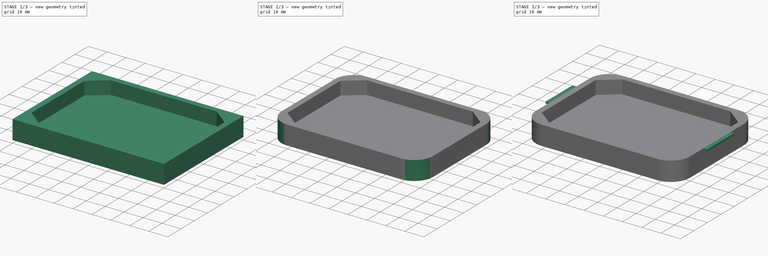
[diagram: build sequence overview — one tinted view per stage of 3, left to right]
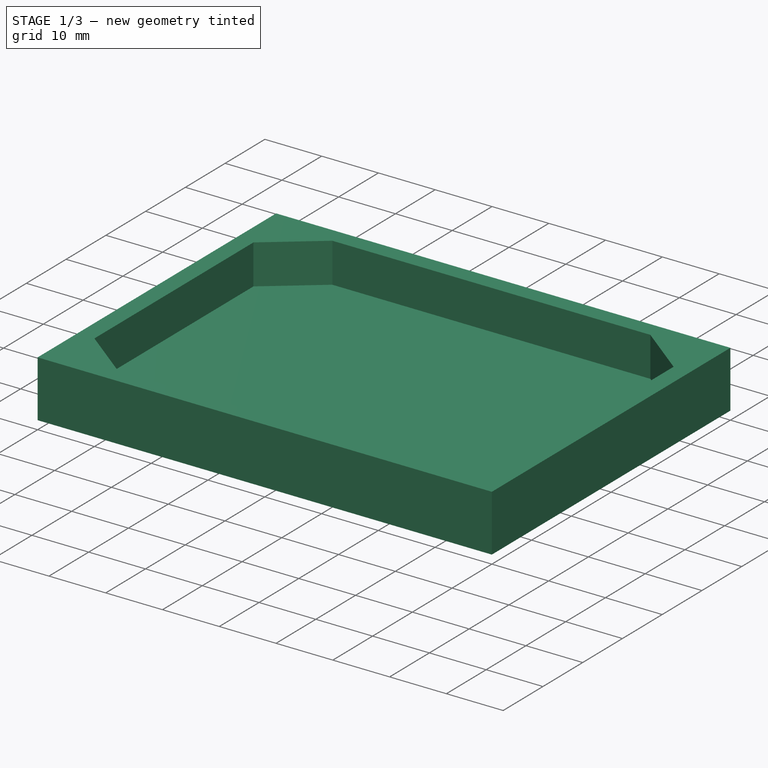
[diagram: stage 1 of 3 — iso view after this stage's code; geometry added in this stage tinted green]
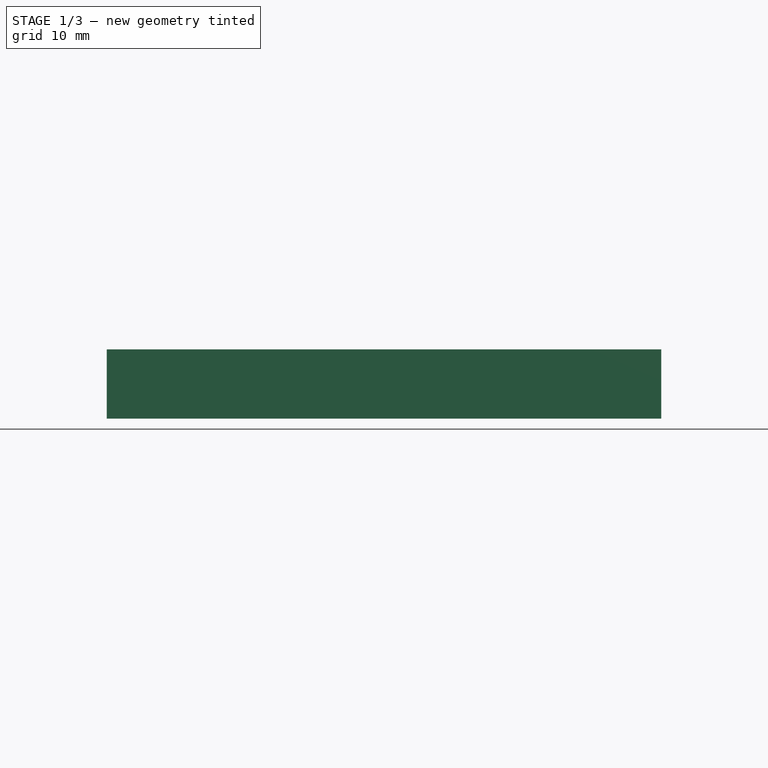
[diagram: stage 1 of 3 — front view after this stage's code; geometry added in this stage tinted green]
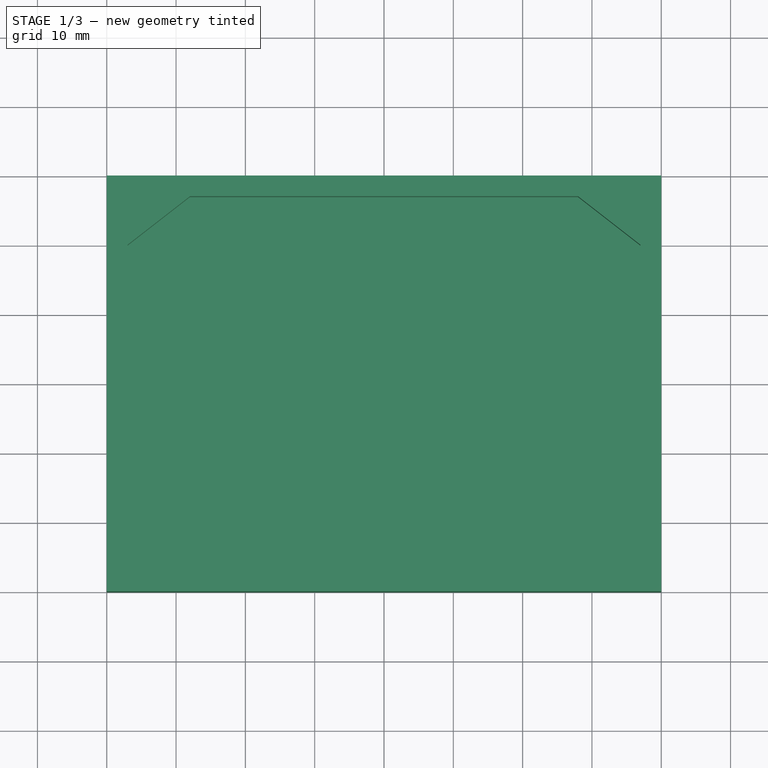
[diagram: stage 1 of 3 — top view after this stage's code; geometry added in this stage tinted green]
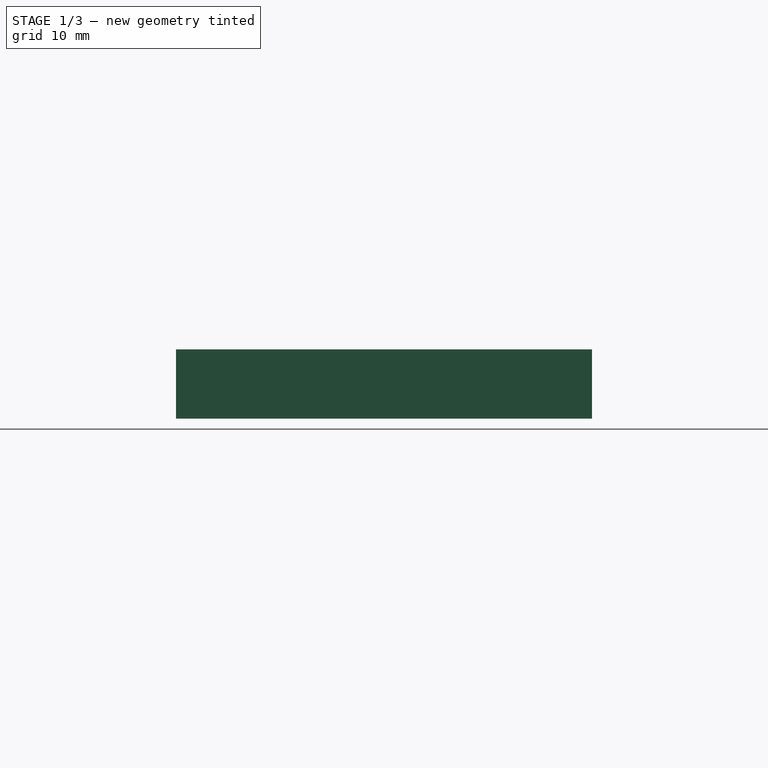
[diagram: stage 1 of 3 — right view after this stage's code; geometry added in this stage tinted green]
FCSTD DOCUMENT  (FreeCAD 0.19R)
Label: CercaCane
License: All rights reserved
LicenseURL: http://en.wikipedia.org/wiki/All_rights_reserved
objects: Sketcher::SketchObject×3, PartDesign::Pad×2, Spreadsheet::Sheet×1, PartDesign::Pocket×1, PartDesign::Fillet×1, PartDesign::Mirrored×1, PartDesign::Body×1
note: 13 computed .brp shape members not serialized (recipe doc carries the construction recipe); baked Part::Feature solids carry a one-line shape summary decoded from their .brp

FEATURE [Spreadsheet::Sheet] Spreadsheet  label="SB"
  cells = A1=Height; B1(height)=10; A2=Width; B2(width)=60; A3=Length; B3(length)=80; A4=Border; B4(border)=3
FEATURE [Sketcher::SketchObject] Sketch
  FullyConstrained = true
  MapMode = 5
  Support = -> [XY_Plane001]
  expr: Constraints[11] = <<SB>>.width / 2
  expr: Constraints[10] = <<SB>>.length / -2
  expr: Constraints[9] = <<SB>>.width
  expr: Constraints[8] = Spreadsheet.length
  sketch-geometry (4):
    g0: LineSegment StartX=-40 StartY=30 StartZ=0 EndX=40 EndY=30 EndZ=0
    g1: LineSegment StartX=40 StartY=30 StartZ=0 EndX=40 EndY=-30 EndZ=0
    g2: LineSegment StartX=40 StartY=-30 StartZ=0 EndX=-40 EndY=-30 EndZ=0
    g3: LineSegment StartX=-40 StartY=-30 StartZ=0 EndX=-40 EndY=30 EndZ=0
  constraints (12):
    c: Coincident(g0,g1)
    c: Coincident(g1,g2)
    c: Coincident(g2,g3)
    c: Coincident(g3,g0)
    c: Horizontal(g0)
    c: Horizontal(g2)
    c: Vertical(g1)
    c: Vertical(g3)
    c: DistanceX(g0,g0) = 80
    c: DistanceY(g3,g3) = 60
    c: DistanceX(g0) = -40
    c: DistanceY(g0) = 30
FEATURE [PartDesign::Pad] Pad  label="Shell"
  AllowMultiFace = false
  Direction = (1,1,1)
  Length = 10
  Length2 = 100
  Profile = -> Sketch
  Type = 0
  expr: Length = <<SB>>.height
FEATURE [Sketcher::SketchObject] Sketch002  label="Indent"
  FullyConstrained = false
  MapMode = 5
  Placement = pos=(0,0,10) rot=(0,0,1;0rad)
  Support = -> [Pad]
  expr: Constraints[11] = <<SB>>.width / 2 - <<SB>>.border
  expr: Constraints[12] = <<SB>>.length / -2 + <<SB>>.border
  expr: Constraints[10] = <<SB>>.length / -2 + <<SB>>.border * 4
  sketch-geometry (8):
    g0: LineSegment StartX=-28 StartY=27 StartZ=0 EndX=28 EndY=27 EndZ=0
    g1: LineSegment StartX=-28 StartY=27 StartZ=0 EndX=-37 EndY=20 EndZ=0
    g2: LineSegment StartX=-37 StartY=20 StartZ=0 EndX=-37 EndY=-20 EndZ=0
    g3: LineSegment StartX=-37 StartY=-20 StartZ=0 EndX=-28 EndY=-27 EndZ=0
    g4: LineSegment StartX=-28 StartY=-27 StartZ=0 EndX=28 EndY=-27 EndZ=0
    g5: LineSegment StartX=28 StartY=-27 StartZ=0 EndX=37 EndY=-20 EndZ=0
    g6: LineSegment StartX=37 StartY=-20 StartZ=0 EndX=37 EndY=20 EndZ=0
    g7: LineSegment StartX=37 StartY=20 StartZ=0 EndX=28 EndY=27 EndZ=0
  constraints (19):
    c: Horizontal(g0)
    c: Coincident(g1,g0)
    c: Coincident(g2,g1)
    c: Coincident(g3,g2)
    c: Coincident(g4,g3)
    c: Horizontal(g4)
    c: Coincident(g5,g4)
    c: Coincident(g6,g5)
    c: Coincident(g7,g6)
    c: Coincident(g7,g0)
    c: DistanceX(g0) = -28
    c: DistanceY(g0) = 27
    c: DistanceX(g1) = -37
    c: Symmetric(g2,g5,g-2)
    c: Symmetric(g3,g4,g-2)
    c: Symmetric(g0,g3,g-1)
    c: Symmetric(g1,g2,g-1)
    c: Symmetric(g0,g4,g-1)
    c: Symmetric(g6,g5,g-1)
FEATURE [PartDesign::Pocket] Pocket
  BaseFeature = -> Pad
  Length = 7
  Length2 = 100
  Profile = -> Sketch002
  Type = 0
  expr: Length = <<SB>>.height - <<SB>>.border
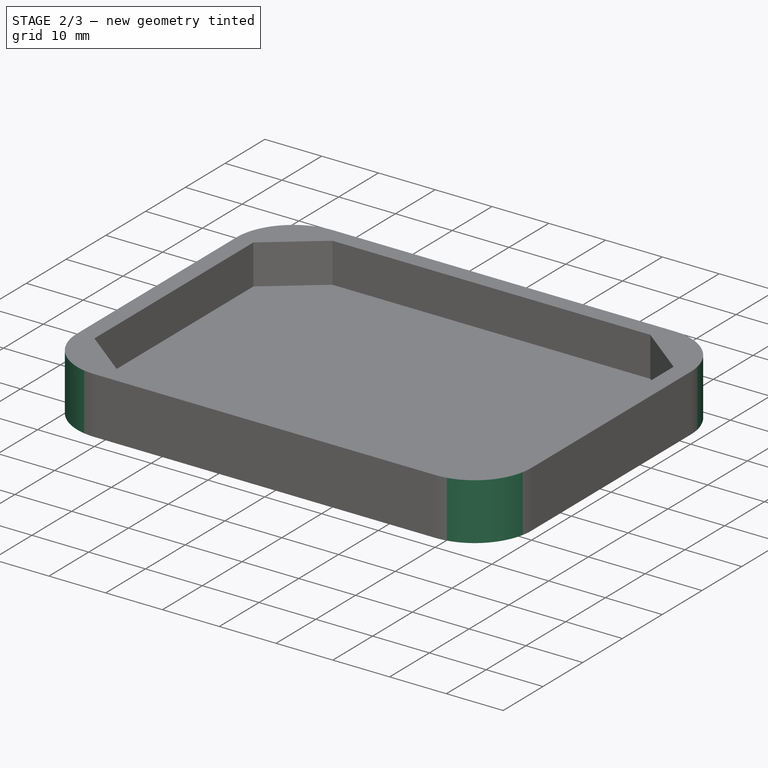
[diagram: stage 2 of 3 — iso view after this stage's code; geometry added in this stage tinted green]
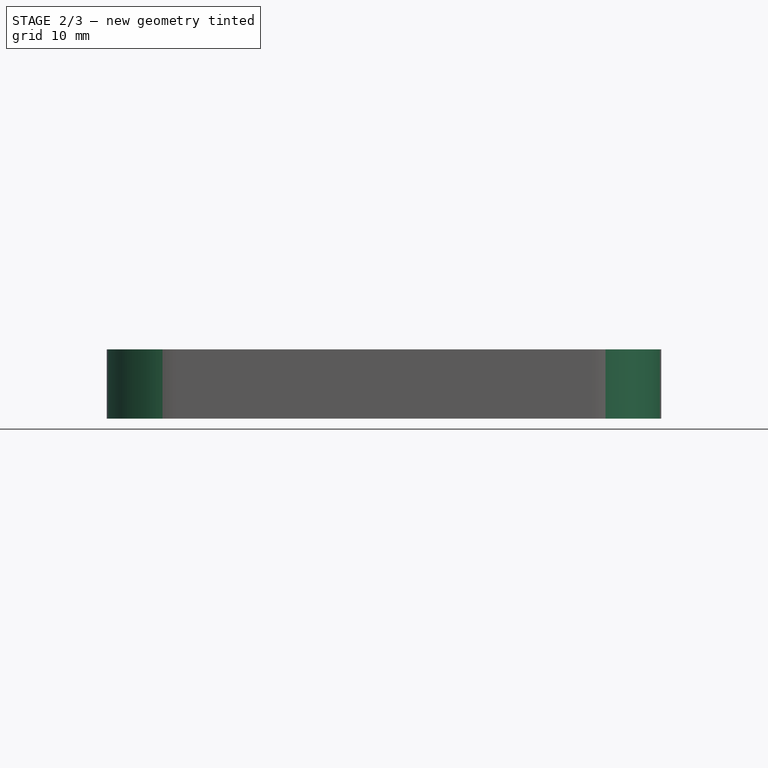
[diagram: stage 2 of 3 — front view after this stage's code; geometry added in this stage tinted green]
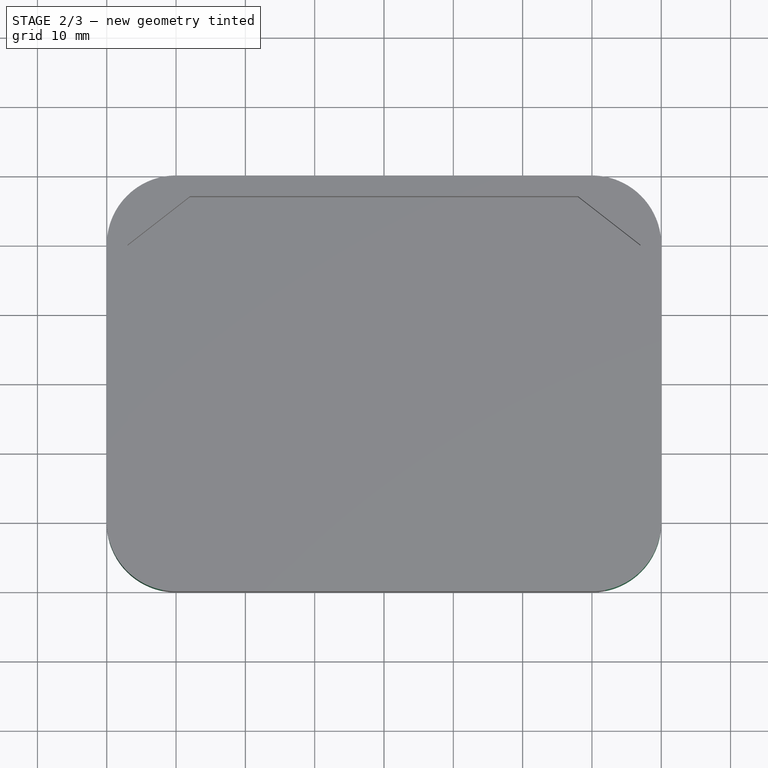
[diagram: stage 2 of 3 — top view after this stage's code; geometry added in this stage tinted green]
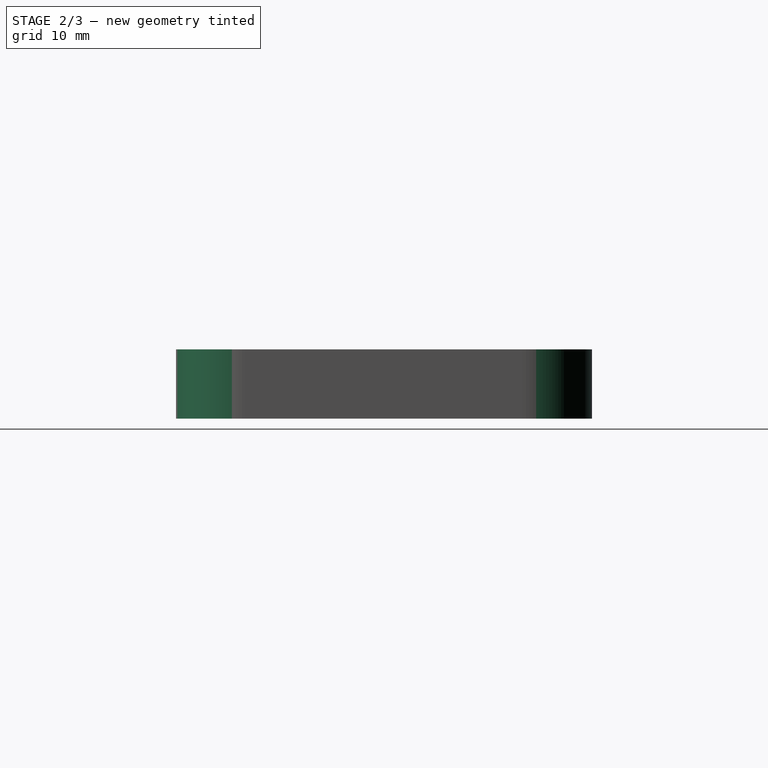
[diagram: stage 2 of 3 — right view after this stage's code; geometry added in this stage tinted green]
FEATURE [PartDesign::Fillet] Fillet001
  Base = -> Pocket [Edge1,Edge2,Edge8,Edge5]
  BaseFeature = -> Pocket
  Radius = 10
  SupportTransform = false
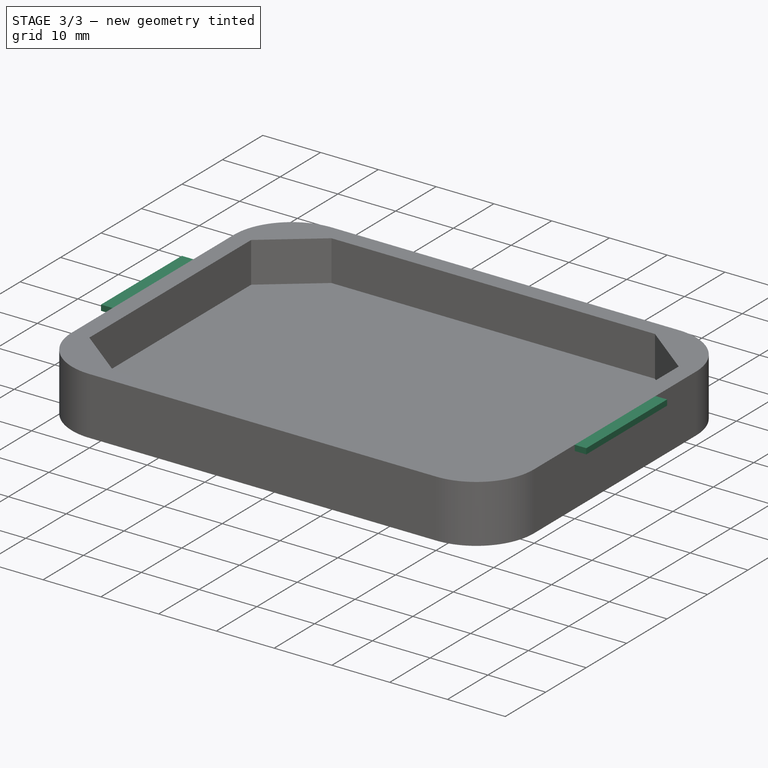
[diagram: stage 3 of 3 — iso view after this stage's code; geometry added in this stage tinted green]
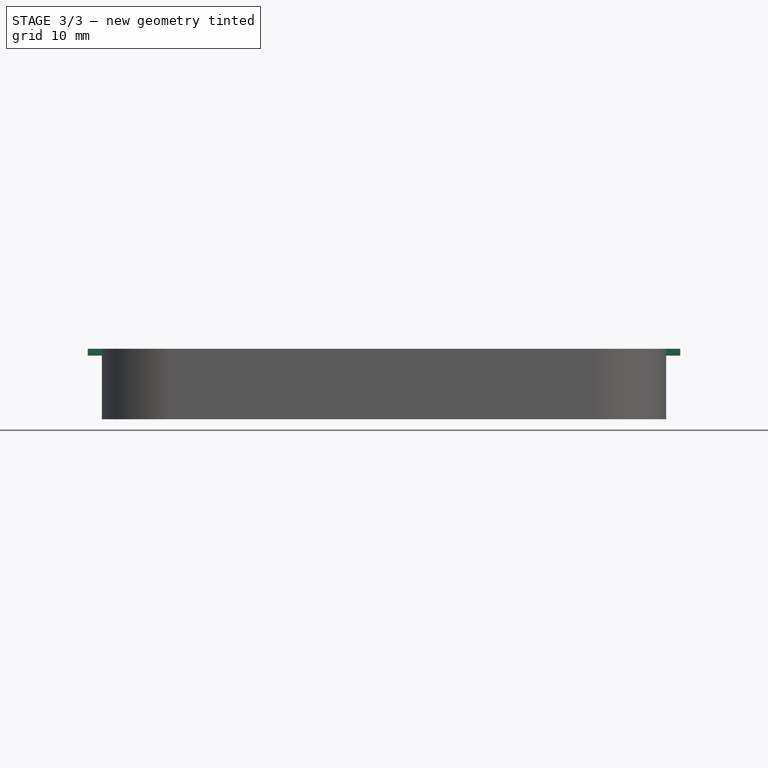
[diagram: stage 3 of 3 — front view after this stage's code; geometry added in this stage tinted green]
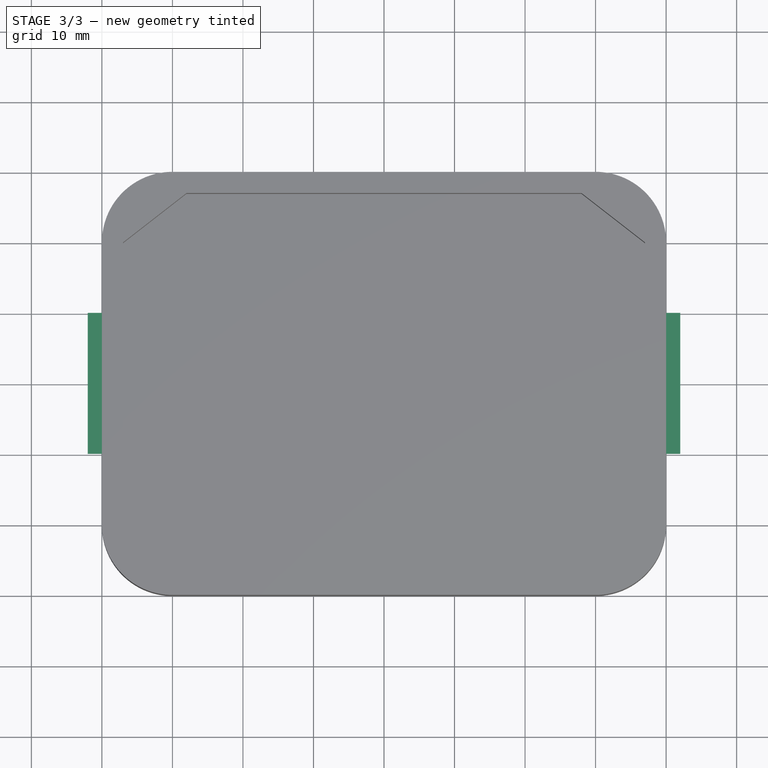
[diagram: stage 3 of 3 — top view after this stage's code; geometry added in this stage tinted green]
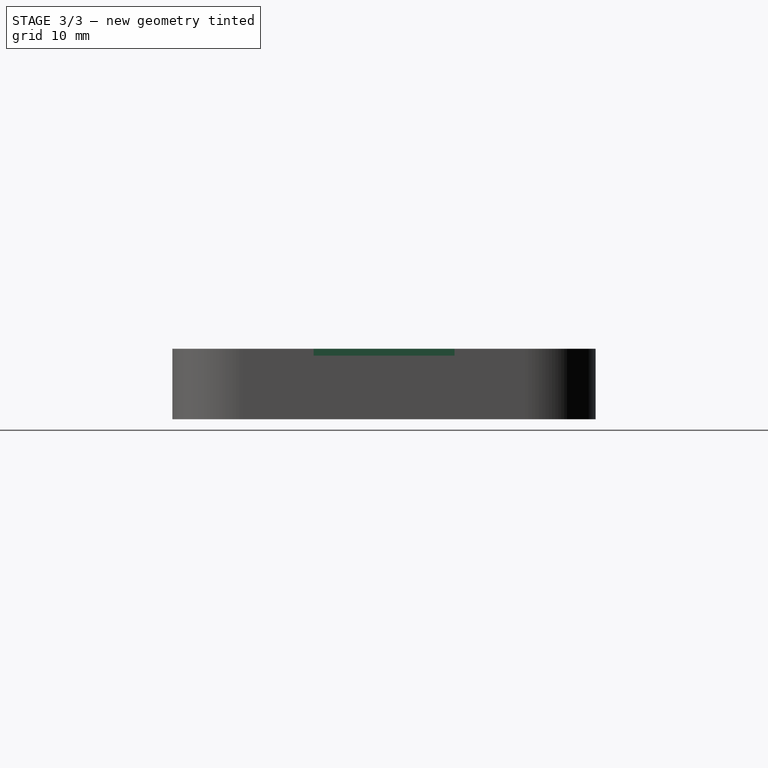
[diagram: stage 3 of 3 — right view after this stage's code; geometry added in this stage tinted green]
FEATURE [Sketcher::SketchObject] Sketch003
  FullyConstrained = false
  MapMode = 5
  Placement = pos=(-40,0,0) rot=(0.57735,-0.57735,-0.57735;2.0944rad)
  Support = -> [Fillet001]
  sketch-geometry (4):
    g0: LineSegment StartX=-10 StartY=10 StartZ=0 EndX=9.97424 EndY=10 EndZ=0
    g1: LineSegment StartX=9.97424 StartY=10 StartZ=0 EndX=9.97424 EndY=9.02664 EndZ=0
    g2: LineSegment StartX=9.97424 StartY=9.02664 StartZ=0 EndX=-10 EndY=9.02664 EndZ=0
    g3: LineSegment StartX=-10 StartY=9.02664 StartZ=0 EndX=-10 EndY=10 EndZ=0
  constraints (8):
    c: Coincident(g0,g1)
    c: Coincident(g1,g2)
    c: Coincident(g2,g3)
    c: Coincident(g3,g0)
    c: Horizontal(g0)
    c: Horizontal(g2)
    c: Vertical(g1)
    c: Vertical(g3)
FEATURE [PartDesign::Pad] Pad001
  BaseFeature = -> Fillet001
  Direction = (1,1,1)
  Length = 2
  Length2 = 100
  Profile = -> Sketch003
  Type = 0
FEATURE [PartDesign::Mirrored] Mirrored
  BaseFeature = -> Pad001
  MirrorPlane = -> YZ_Plane001
  Originals = -> [Pad001]
FEATURE [PartDesign::Body] PadBody
  Group = -> [Sketch,Pad,Sketch002,Pocket,Fillet001,Sketch003,Pad001,Mirrored]
  Origin = -> Origin001
  Tip = -> Mirrored
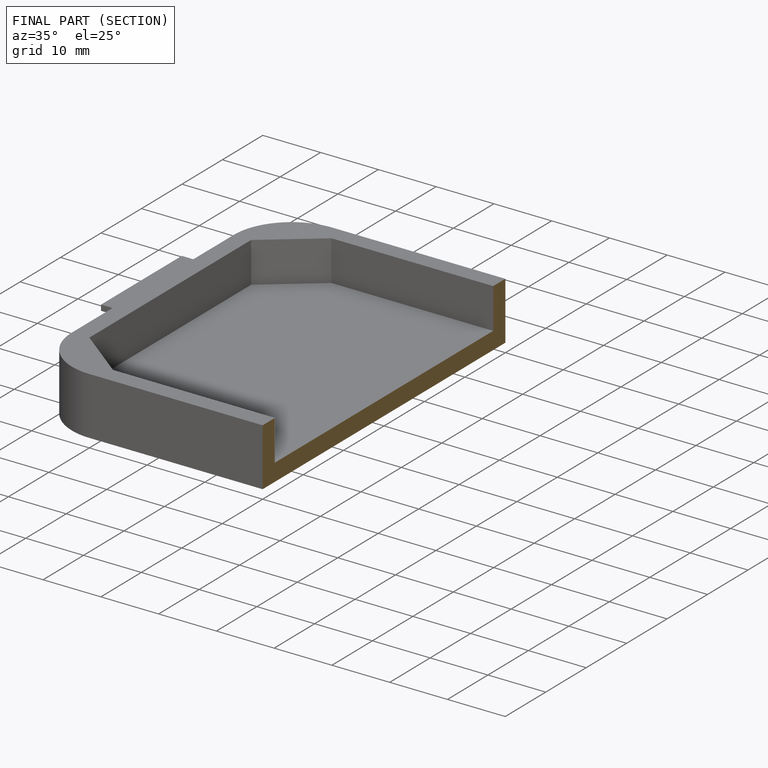
[diagram: finished part — half-section view (interior)]
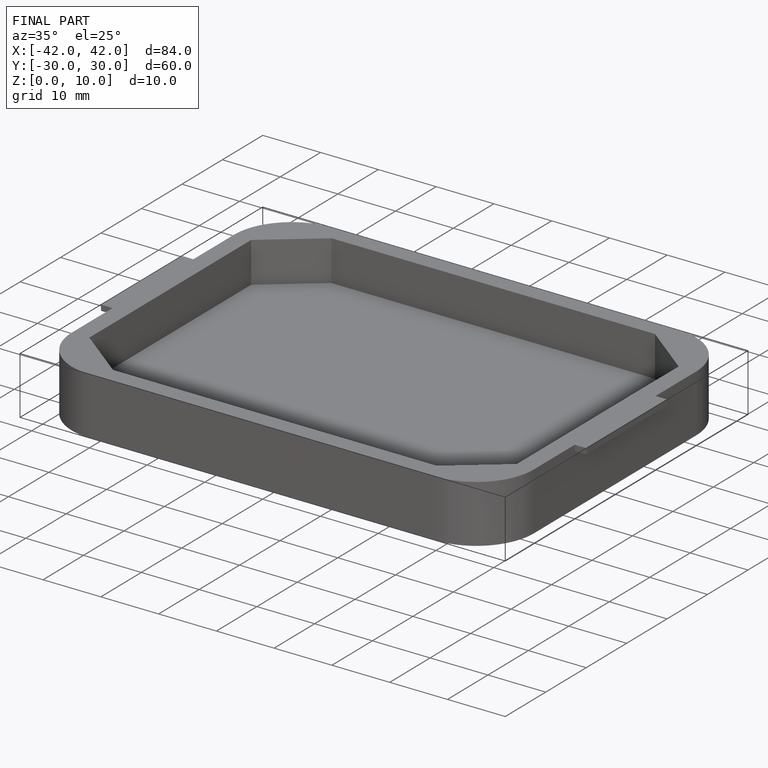
[diagram: finished part — iso view with bounding-box wireframe]
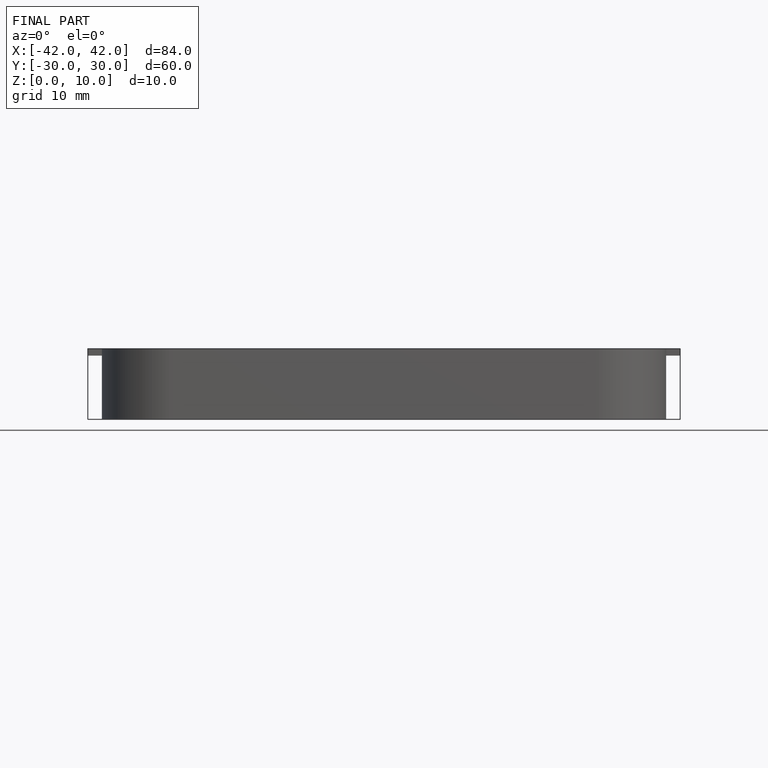
[diagram: finished part — front view with bounding-box wireframe]
